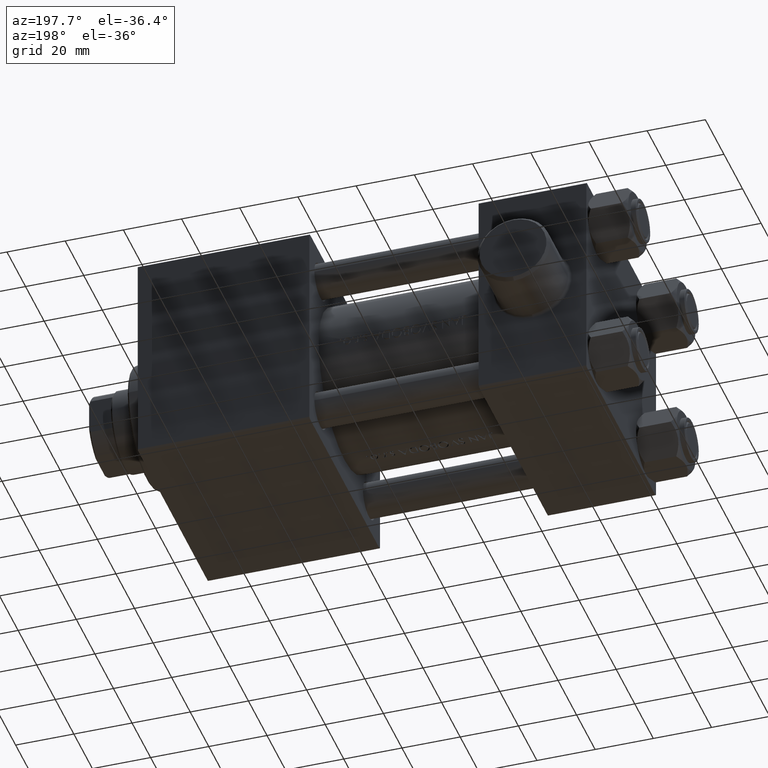
[diagram: clean part render]
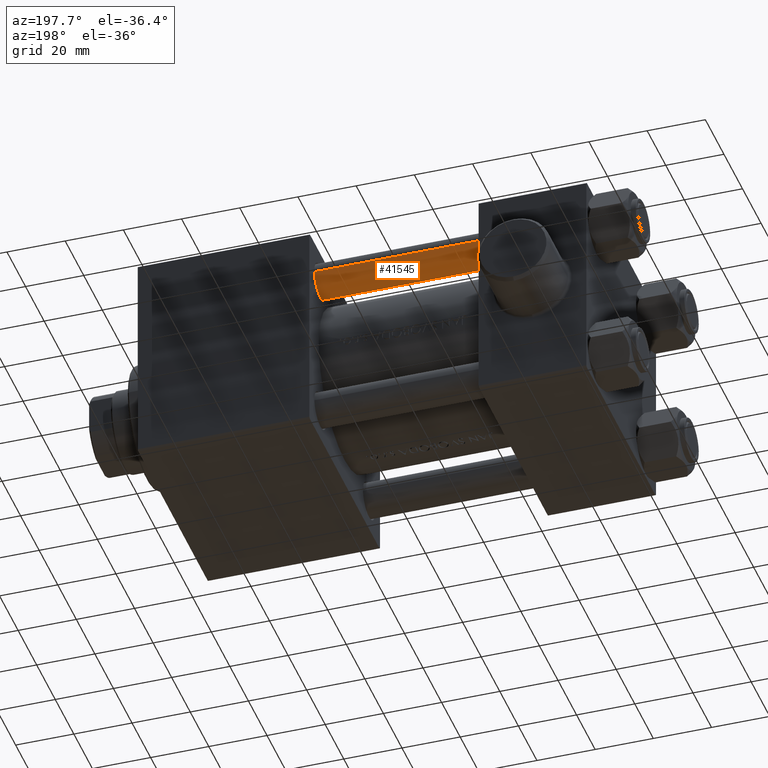
[diagram: same view with one face highlighted and labeled with its STEP entity id]
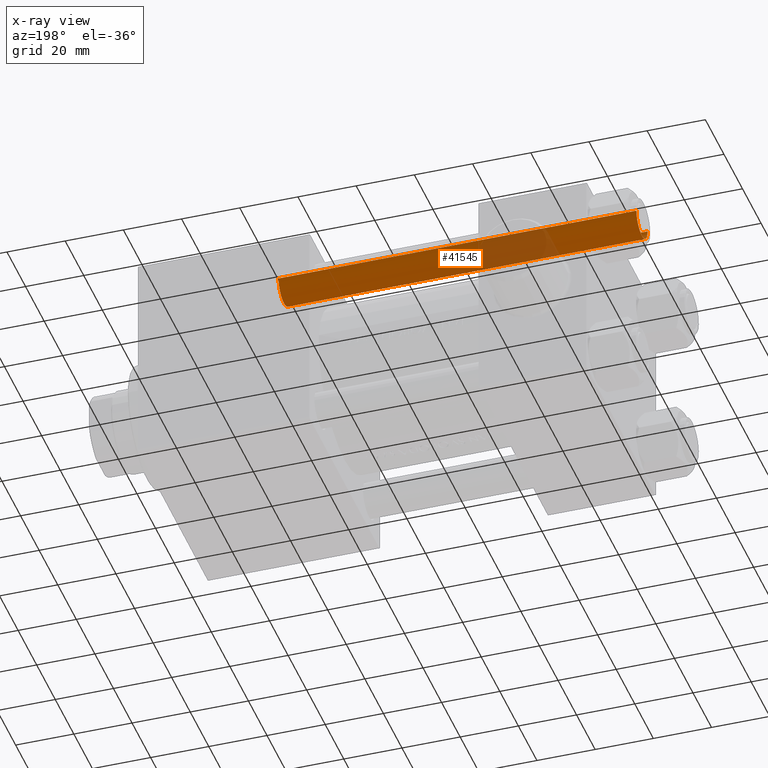
[diagram: x-ray of the same camera — body ghosted, the highlighted face saturated]
A machine part, auxiliary view. The second image highlights one B-rep face of the part: STEP entity #41545.
The next image is the same camera in x-ray: the body ghosted, the highlighted face saturated — about 20% of this face is hidden behind the body in this view.
In plain terms, the highlighted cylindrical surface (edge-blend (fillet) strip) has radius 6 mm, axis along (-1, -0, 0).
Its self-contained STEP definition (entity closure, byte-faithful):
#1244 = LINE ( 'NONE', #15317, #43694 ) ;
#1715 = CARTESIAN_POINT ( 'NONE',  ( -6.000000000000000888, 0.000000000000000000, 0.4999999999999865663 ) ) ;
#1813 = CARTESIAN_POINT ( 'NONE',  ( 6.000000000000000888, 7.347880794884120722E-16, 123.5000000000000426 ) ) ;
#2340 = ORIENTED_EDGE ( 'NONE', *, *, #29836, .T. ) ;
#2950 = VERTEX_POINT ( 'NONE', #31264 ) ;
#4867 = DIRECTION ( 'NONE',  ( -1.000000000000000000, 0.000000000000000000, 0.000000000000000000 ) ) ;
#7322 = CIRCLE ( 'NONE', #33449, 6.000000000000000888 ) ;
#8536 = EDGE_CURVE ( 'NONE', #43744, #41486, #1244, .T. ) ;
#9814 = DIRECTION ( 'NONE',  ( -0.000000000000000000, -0.000000000000000000, 1.000000000000000000 ) ) ;
#11447 = CYLINDRICAL_SURFACE ( 'NONE', #32342, 6.000000000000000888 ) ;
#12482 = EDGE_CURVE ( 'NONE', #2950, #45942, #35245, .T. ) ;
#13410 = CARTESIAN_POINT ( 'NONE',  ( 0.000000000000000000, 0.000000000000000000, 123.5000000000000426 ) ) ;
#14943 = AXIS2_PLACEMENT_3D ( 'NONE', #13410, #45690, #23919 ) ;
#15317 = CARTESIAN_POINT ( 'NONE',  ( 6.000000000000000888, 7.347880794884120722E-16, 124.0000000000000000 ) ) ;
#16233 = DIRECTION ( 'NONE',  ( -0.000000000000000000, -0.000000000000000000, -1.000000000000000000 ) ) ;
#17496 = CARTESIAN_POINT ( 'NONE',  ( -6.000000000000000888, 0.000000000000000000, 124.0000000000000000 ) ) ;
#17517 = EDGE_CURVE ( 'NONE', #41486, #45942, #7322, .T. ) ;
#17952 = CIRCLE ( 'NONE', #14943, 6.000000000000000888 ) ;
#18001 = ORIENTED_EDGE ( 'NONE', *, *, #12482, .F. ) ;
#22716 = ORIENTED_EDGE ( 'NONE', *, *, #17517, .T. ) ;
#23548 = DIRECTION ( 'NONE',  ( -0.000000000000000000, -0.000000000000000000, -1.000000000000000000 ) ) ;
#23919 = DIRECTION ( 'NONE',  ( 1.000000000000000000, 0.000000000000000000, 0.000000000000000000 ) ) ;
#24094 = EDGE_LOOP ( 'NONE', ( #2340, #40093, #22716, #18001 ) ) ;
#25241 = DIRECTION ( 'NONE',  ( 1.000000000000000000, 0.000000000000000000, 0.000000000000000000 ) ) ;
#25711 = CARTESIAN_POINT ( 'NONE',  ( 6.000000000000000888, 7.347880794884120722E-16, 0.4999999999999865663 ) ) ;
#29836 = EDGE_CURVE ( 'NONE', #2950, #43744, #17952, .T. ) ;
#29909 = CARTESIAN_POINT ( 'NONE',  ( 0.000000000000000000, 0.000000000000000000, 124.0000000000000000 ) ) ;
#30314 = VECTOR ( 'NONE', #23548, 1000.000000000000000 ) ;
#31264 = CARTESIAN_POINT ( 'NONE',  ( -6.000000000000000888, 0.000000000000000000, 123.5000000000000426 ) ) ;
#32342 = AXIS2_PLACEMENT_3D ( 'NONE', #29909, #36926, #4867 ) ;
#33449 = AXIS2_PLACEMENT_3D ( 'NONE', #34608, #9814, #25241 ) ;
#34608 = CARTESIAN_POINT ( 'NONE',  ( 0.000000000000000000, 0.000000000000000000, 0.4999999999999865663 ) ) ;
#35245 = LINE ( 'NONE', #17496, #30314 ) ;
#36926 = DIRECTION ( 'NONE',  ( -0.000000000000000000, -0.000000000000000000, -1.000000000000000000 ) ) ;
#40093 = ORIENTED_EDGE ( 'NONE', *, *, #8536, .T. ) ;
#41486 = VERTEX_POINT ( 'NONE', #25711 ) ;
#41545 = ADVANCED_FACE ( 'NONE', ( #43730 ), #11447, .T. ) ;
#43694 = VECTOR ( 'NONE', #16233, 1000.000000000000000 ) ;
#43730 = FACE_OUTER_BOUND ( 'NONE', #24094, .T. ) ;
#43744 = VERTEX_POINT ( 'NONE', #1813 ) ;
#45690 = DIRECTION ( 'NONE',  ( 0.000000000000000000, 0.000000000000000000, -1.000000000000000000 ) ) ;
#45942 = VERTEX_POINT ( 'NONE', #1715 ) ;